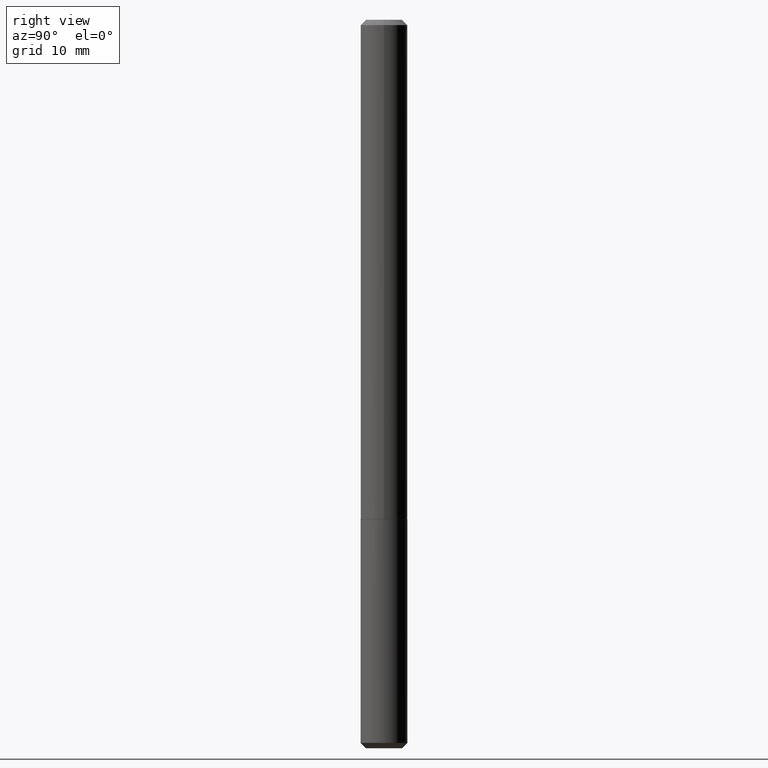
[diagram: clean part render]
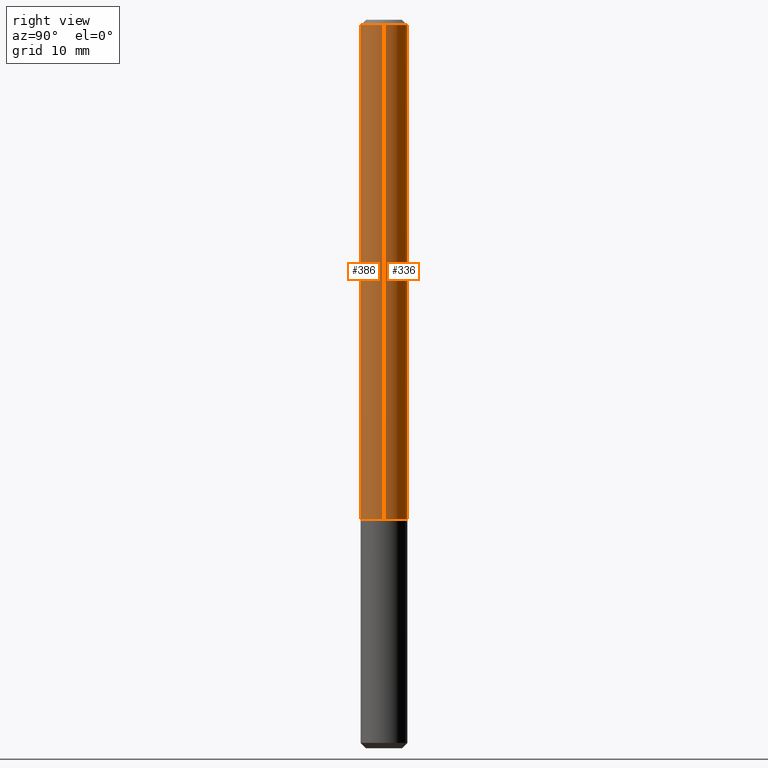
[diagram: same view with one multi-face feature highlighted, each face labeled with its STEP entity id]
A machine part, right view. The highlighted faces form ONE feature: a constant-radius fillet chain: 2 tangent blend faces with common blend radius 2.2504 mm. The faces share edges in the B-rep.
Their STEP definitions:
[1] entity #386 (Cylinder):
#14 = CARTESIAN_POINT ( 'NONE',  ( -0.08860000000000010922, 6.295408638834495408E-16, -4.358176489965852573E-30 ) ) ;
#18 = DIRECTION ( 'NONE',  ( -2.445468806185136597E-29, 3.491481338843145583E-15, 1.000000000000000000 ) ) ;
#33 = VERTEX_POINT ( 'NONE', #335 ) ;
#70 = EDGE_CURVE ( 'NONE', #345, #33, #225, .T. ) ;
#94 = CIRCLE ( 'NONE', #129, 0.08860000000000001208 ) ;
#129 = AXIS2_PLACEMENT_3D ( 'NONE', #138, #264, #166 ) ;
#132 = DIRECTION ( 'NONE',  ( 1.000000000000000000, -6.982962677686267499E-15, 4.876176775795936353E-29 ) ) ;
#138 = CARTESIAN_POINT ( 'NONE',  ( 4.890937612370308191E-31, -6.982962677686342145E-17, -0.02000000000000014613 ) ) ;
#142 = LINE ( 'NONE', #369, #275 ) ;
#144 = EDGE_CURVE ( 'NONE', #345, #359, #274, .T. ) ;
#166 = DIRECTION ( 'NONE',  ( 1.000000000000000000, -6.982962677686266711E-15, 0.000000000000000000 ) ) ;
#192 = ORIENTED_EDGE ( 'NONE', *, *, #406, .F. ) ;
#197 = CARTESIAN_POINT ( 'NONE',  ( 0.000000000000000000, 0.000000000000000000, 0.000000000000000000 ) ) ;
#198 = AXIS2_PLACEMENT_3D ( 'NONE', #197, #291, #132 ) ;
#201 = CYLINDRICAL_SURFACE ( 'NONE', #198, 0.08860000000000010922 ) ;
#208 = DIRECTION ( 'NONE',  ( -2.445468806185136877E-29, 3.491481338843145188E-15, 1.000000000000000000 ) ) ;
#224 = ORIENTED_EDGE ( 'NONE', *, *, #144, .T. ) ;
#225 = LINE ( 'NONE', #14, #299 ) ;
#226 = AXIS2_PLACEMENT_3D ( 'NONE', #366, #18, #402 ) ;
#231 = CARTESIAN_POINT ( 'NONE',  ( 0.08860000000000001208, -6.885201200198667441E-16, -0.02000000000000014613 ) ) ;
#264 = DIRECTION ( 'NONE',  ( -2.445468806185136597E-29, 3.491481338843145583E-15, 1.000000000000000000 ) ) ;
#274 = CIRCLE ( 'NONE', #226, 0.08860000000000022025 ) ;
#275 = VECTOR ( 'NONE', #208, 39.37007874015748143 ) ;
#285 = VERTEX_POINT ( 'NONE', #231 ) ;
#291 = DIRECTION ( 'NONE',  ( -2.445468806185136597E-29, 3.491481338843145583E-15, 1.000000000000000000 ) ) ;
#293 = DIRECTION ( 'NONE',  ( -2.445468806185136877E-29, 3.491481338843145188E-15, 1.000000000000000000 ) ) ;
#294 = FACE_OUTER_BOUND ( 'NONE', #400, .T. ) ;
#299 = VECTOR ( 'NONE', #293, 39.37007874015748143 ) ;
#300 = CARTESIAN_POINT ( 'NONE',  ( 0.08860000000000022025, -7.215146186719359029E-15, -1.889299999999999979 ) ) ;
#331 = CARTESIAN_POINT ( 'NONE',  ( -0.08860000000000022025, -5.966914829592904859E-15, -1.889299999999999979 ) ) ;
#335 = CARTESIAN_POINT ( 'NONE',  ( -0.08860000000000001208, -2.703601796243158075E-15, -0.02000000000000014613 ) ) ;
#345 = VERTEX_POINT ( 'NONE', #331 ) ;
#347 = EDGE_CURVE ( 'NONE', #359, #285, #142, .T. ) ;
#359 = VERTEX_POINT ( 'NONE', #300 ) ;
#366 = CARTESIAN_POINT ( 'NONE',  ( 4.620224215525578627E-29, -6.596455693476355287E-15, -1.889299999999999979 ) ) ;
#369 = CARTESIAN_POINT ( 'NONE',  ( 0.08860000000000010922, -6.186904932430040376E-16, 4.320292623355205071E-30 ) ) ;
#384 = ORIENTED_EDGE ( 'NONE', *, *, #70, .F. ) ;
#386 = ADVANCED_FACE ( 'NONE', ( #294 ), #201, .T. ) ;
#393 = ORIENTED_EDGE ( 'NONE', *, *, #347, .T. ) ;
#400 = EDGE_LOOP ( 'NONE', ( #384, #224, #393, #192 ) ) ;
#402 = DIRECTION ( 'NONE',  ( 1.000000000000000000, -6.982962677686262766E-15, 0.000000000000000000 ) ) ;
#406 = EDGE_CURVE ( 'NONE', #33, #285, #94, .T. ) ;
[2] entity #336 (Cylinder):
#14 = CARTESIAN_POINT ( 'NONE',  ( -0.08860000000000010922, 6.295408638834495408E-16, -4.358176489965852573E-30 ) ) ;
#33 = VERTEX_POINT ( 'NONE', #335 ) ;
#70 = EDGE_CURVE ( 'NONE', #345, #33, #225, .T. ) ;
#76 = EDGE_CURVE ( 'NONE', #285, #33, #409, .T. ) ;
#122 = ORIENTED_EDGE ( 'NONE', *, *, #375, .T. ) ;
#142 = LINE ( 'NONE', #369, #275 ) ;
#147 = DIRECTION ( 'NONE',  ( 1.000000000000000000, -6.982962677686267499E-15, 4.876176775795936353E-29 ) ) ;
#164 = AXIS2_PLACEMENT_3D ( 'NONE', #362, #329, #147 ) ;
#178 = CIRCLE ( 'NONE', #340, 0.08860000000000022025 ) ;
#208 = DIRECTION ( 'NONE',  ( -2.445468806185136877E-29, 3.491481338843145188E-15, 1.000000000000000000 ) ) ;
#225 = LINE ( 'NONE', #14, #299 ) ;
#230 = DIRECTION ( 'NONE',  ( 1.000000000000000000, -6.982962677686266711E-15, 0.000000000000000000 ) ) ;
#231 = CARTESIAN_POINT ( 'NONE',  ( 0.08860000000000001208, -6.885201200198667441E-16, -0.02000000000000014613 ) ) ;
#234 = EDGE_LOOP ( 'NONE', ( #122, #279, #237, #351 ) ) ;
#237 = ORIENTED_EDGE ( 'NONE', *, *, #76, .F. ) ;
#267 = CARTESIAN_POINT ( 'NONE',  ( 4.890937612370308191E-31, -6.982962677686342145E-17, -0.02000000000000014613 ) ) ;
#272 = CARTESIAN_POINT ( 'NONE',  ( 4.620224215525578627E-29, -6.596455693476355287E-15, -1.889299999999999979 ) ) ;
#275 = VECTOR ( 'NONE', #208, 39.37007874015748143 ) ;
#279 = ORIENTED_EDGE ( 'NONE', *, *, #70, .T. ) ;
#285 = VERTEX_POINT ( 'NONE', #231 ) ;
#293 = DIRECTION ( 'NONE',  ( -2.445468806185136877E-29, 3.491481338843145188E-15, 1.000000000000000000 ) ) ;
#299 = VECTOR ( 'NONE', #293, 39.37007874015748143 ) ;
#300 = CARTESIAN_POINT ( 'NONE',  ( 0.08860000000000022025, -7.215146186719359029E-15, -1.889299999999999979 ) ) ;
#322 = AXIS2_PLACEMENT_3D ( 'NONE', #267, #374, #230 ) ;
#329 = DIRECTION ( 'NONE',  ( -2.445468806185136597E-29, 3.491481338843145583E-15, 1.000000000000000000 ) ) ;
#331 = CARTESIAN_POINT ( 'NONE',  ( -0.08860000000000022025, -5.966914829592904859E-15, -1.889299999999999979 ) ) ;
#335 = CARTESIAN_POINT ( 'NONE',  ( -0.08860000000000001208, -2.703601796243158075E-15, -0.02000000000000014613 ) ) ;
#336 = ADVANCED_FACE ( 'NONE', ( #398 ), #371, .T. ) ;
#340 = AXIS2_PLACEMENT_3D ( 'NONE', #272, #358, #353 ) ;
#345 = VERTEX_POINT ( 'NONE', #331 ) ;
#347 = EDGE_CURVE ( 'NONE', #359, #285, #142, .T. ) ;
#351 = ORIENTED_EDGE ( 'NONE', *, *, #347, .F. ) ;
#353 = DIRECTION ( 'NONE',  ( 1.000000000000000000, -6.982962677686262766E-15, 0.000000000000000000 ) ) ;
#358 = DIRECTION ( 'NONE',  ( -2.445468806185136597E-29, 3.491481338843145583E-15, 1.000000000000000000 ) ) ;
#359 = VERTEX_POINT ( 'NONE', #300 ) ;
#362 = CARTESIAN_POINT ( 'NONE',  ( 0.000000000000000000, 0.000000000000000000, 0.000000000000000000 ) ) ;
#369 = CARTESIAN_POINT ( 'NONE',  ( 0.08860000000000010922, -6.186904932430040376E-16, 4.320292623355205071E-30 ) ) ;
#371 = CYLINDRICAL_SURFACE ( 'NONE', #164, 0.08860000000000010922 ) ;
#374 = DIRECTION ( 'NONE',  ( -2.445468806185136597E-29, 3.491481338843145583E-15, 1.000000000000000000 ) ) ;
#375 = EDGE_CURVE ( 'NONE', #359, #345, #178, .T. ) ;
#398 = FACE_OUTER_BOUND ( 'NONE', #234, .T. ) ;
#409 = CIRCLE ( 'NONE', #322, 0.08860000000000001208 ) ;